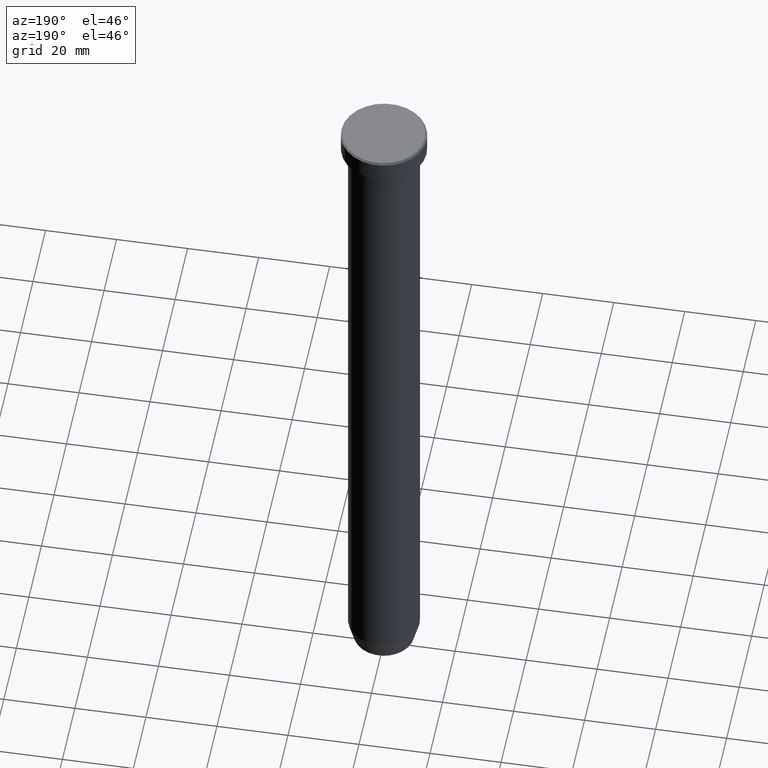
[diagram: clean part render]
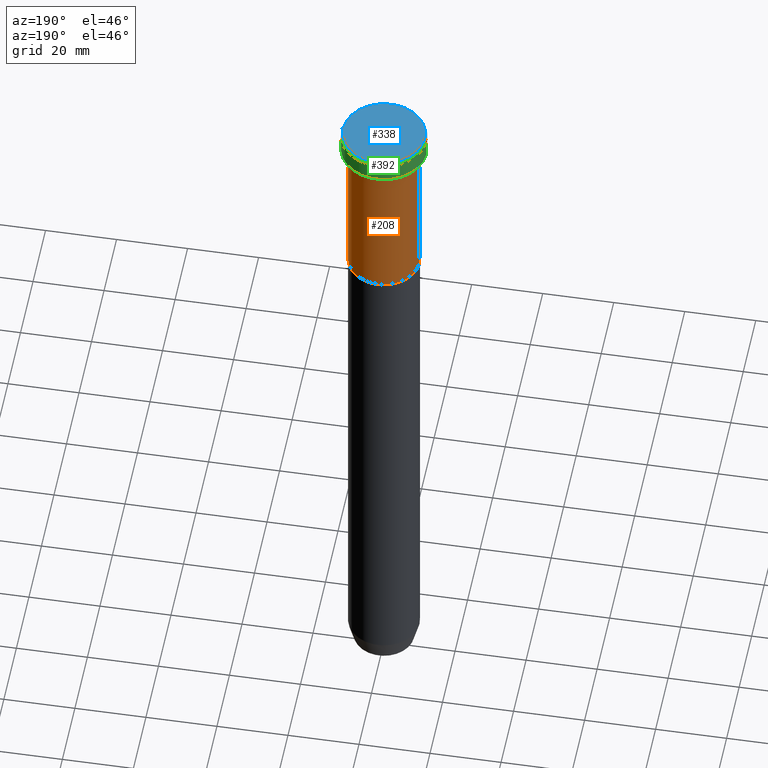
[diagram: same view with three faces highlighted in distinct colors, each labeled with its STEP entity id]
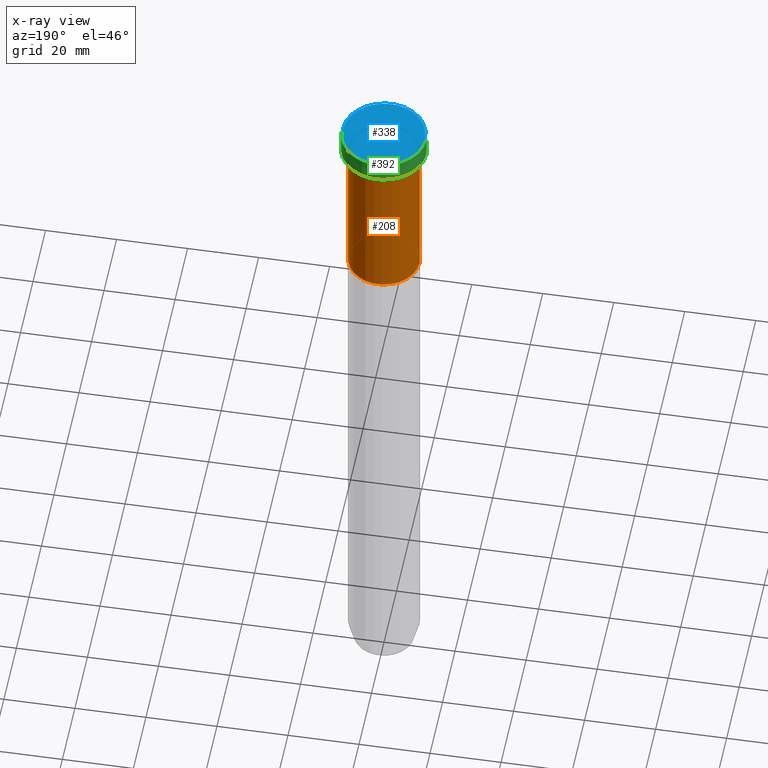
[diagram: x-ray of the same camera — body ghosted, the three highlighted faces saturated]
A machine part, auxiliary view with three faces highlighted in distinct colors.
The next image is the same camera in x-ray (body ghosted, the three faces saturated) — at least one of them is partly hidden behind the body in this view.
Their STEP definitions:

[orange] entity #208 — the highlighted cylindrical surface (edge-blend (fillet) strip) has radius 10 mm, axis along (-0, -0, 1).
#6 = CARTESIAN_POINT ( 'NONE',  ( -10.00000000000000000, 1.224646799147353256E-15, -50.00000000000000000 ) ) ;
#16 = LINE ( 'NONE', #194, #376 ) ;
#28 = DIRECTION ( 'NONE',  ( -0.000000000000000000, -0.000000000000000000, 1.000000000000000000 ) ) ;
#46 = CARTESIAN_POINT ( 'NONE',  ( -10.00000000000000000, 1.224646799147353256E-15, -6.999999999999999112 ) ) ;
#57 = AXIS2_PLACEMENT_3D ( 'NONE', #62, #404, #282 ) ;
#62 = CARTESIAN_POINT ( 'NONE',  ( 0.000000000000000000, 0.000000000000000000, -50.00000000000000000 ) ) ;
#84 = CARTESIAN_POINT ( 'NONE',  ( 10.00000000000000000, 0.000000000000000000, -50.00000000000000000 ) ) ;
#98 = CARTESIAN_POINT ( 'NONE',  ( 0.000000000000000000, 0.000000000000000000, 0.000000000000000000 ) ) ;
#133 = VERTEX_POINT ( 'NONE', #84 ) ;
#136 = EDGE_CURVE ( 'NONE', #361, #314, #256, .T. ) ;
#159 = ORIENTED_EDGE ( 'NONE', *, *, #380, .F. ) ;
#161 = AXIS2_PLACEMENT_3D ( 'NONE', #203, #28, #389 ) ;
#183 = CARTESIAN_POINT ( 'NONE',  ( 10.00000000000000000, 0.000000000000000000, -6.999999999999999112 ) ) ;
#194 = CARTESIAN_POINT ( 'NONE',  ( 10.00000000000000000, 0.000000000000000000, 0.000000000000000000 ) ) ;
#195 = DIRECTION ( 'NONE',  ( -0.000000000000000000, -0.000000000000000000, 1.000000000000000000 ) ) ;
#203 = CARTESIAN_POINT ( 'NONE',  ( 0.000000000000000000, 0.000000000000000000, -6.999999999999999112 ) ) ;
#208 = ADVANCED_FACE ( 'NONE', ( #420 ), #233, .T. ) ;
#213 = CIRCLE ( 'NONE', #57, 10.00000000000000000 ) ;
#233 = CYLINDRICAL_SURFACE ( 'NONE', #478, 10.00000000000000000 ) ;
#240 = ORIENTED_EDGE ( 'NONE', *, *, #589, .F. ) ;
#250 = VECTOR ( 'NONE', #195, 1000.000000000000000 ) ;
#256 = LINE ( 'NONE', #457, #250 ) ;
#281 = ORIENTED_EDGE ( 'NONE', *, *, #136, .T. ) ;
#282 = DIRECTION ( 'NONE',  ( 1.000000000000000000, 0.000000000000000000, 0.000000000000000000 ) ) ;
#286 = ORIENTED_EDGE ( 'NONE', *, *, #585, .T. ) ;
#314 = VERTEX_POINT ( 'NONE', #46 ) ;
#361 = VERTEX_POINT ( 'NONE', #6 ) ;
#376 = VECTOR ( 'NONE', #564, 1000.000000000000000 ) ;
#380 = EDGE_CURVE ( 'NONE', #480, #314, #462, .T. ) ;
#389 = DIRECTION ( 'NONE',  ( 1.000000000000000000, 0.000000000000000000, 0.000000000000000000 ) ) ;
#404 = DIRECTION ( 'NONE',  ( -0.000000000000000000, -0.000000000000000000, 1.000000000000000000 ) ) ;
#420 = FACE_OUTER_BOUND ( 'NONE', #433, .T. ) ;
#429 = DIRECTION ( 'NONE',  ( 1.000000000000000000, 0.000000000000000000, 0.000000000000000000 ) ) ;
#433 = EDGE_LOOP ( 'NONE', ( #286, #281, #159, #240 ) ) ;
#457 = CARTESIAN_POINT ( 'NONE',  ( -10.00000000000000000, 1.224646799147353256E-15, 0.000000000000000000 ) ) ;
#462 = CIRCLE ( 'NONE', #161, 10.00000000000000000 ) ;
#478 = AXIS2_PLACEMENT_3D ( 'NONE', #98, #517, #429 ) ;
#480 = VERTEX_POINT ( 'NONE', #183 ) ;
#517 = DIRECTION ( 'NONE',  ( -0.000000000000000000, -0.000000000000000000, 1.000000000000000000 ) ) ;
#564 = DIRECTION ( 'NONE',  ( -0.000000000000000000, -0.000000000000000000, 1.000000000000000000 ) ) ;
#585 = EDGE_CURVE ( 'NONE', #133, #361, #213, .T. ) ;
#589 = EDGE_CURVE ( 'NONE', #133, #480, #16, .T. ) ;

[blue] entity #338 — the highlighted planar face has unit normal (0, -0, 1).
#12 = PLANE ( 'NONE',  #547 ) ;
#42 = CIRCLE ( 'NONE', #565, 11.50000000000000888 ) ;
#48 = DIRECTION ( 'NONE',  ( 0.000000000000000000, -0.000000000000000000, 1.000000000000000000 ) ) ;
#66 = ORIENTED_EDGE ( 'NONE', *, *, #515, .T. ) ;
#91 = DIRECTION ( 'NONE',  ( 1.000000000000000000, 0.000000000000000000, 0.000000000000000000 ) ) ;
#110 = CARTESIAN_POINT ( 'NONE',  ( 0.000000000000000000, 0.000000000000000000, 0.000000000000000000 ) ) ;
#112 = EDGE_LOOP ( 'NONE', ( #66, #446 ) ) ;
#135 = DIRECTION ( 'NONE',  ( -0.000000000000000000, -0.000000000000000000, 1.000000000000000000 ) ) ;
#142 = CARTESIAN_POINT ( 'NONE',  ( 11.50000000000000888, 1.438959988998140752E-15, 0.000000000000000000 ) ) ;
#196 = CIRCLE ( 'NONE', #366, 11.50000000000000888 ) ;
#237 = VERTEX_POINT ( 'NONE', #142 ) ;
#260 = VERTEX_POINT ( 'NONE', #274 ) ;
#264 = FACE_OUTER_BOUND ( 'NONE', #112, .T. ) ;
#274 = CARTESIAN_POINT ( 'NONE',  ( -11.50000000000000888, 0.000000000000000000, 0.000000000000000000 ) ) ;
#275 = CARTESIAN_POINT ( 'NONE',  ( 0.000000000000000000, 0.000000000000000000, 0.000000000000000000 ) ) ;
#302 = DIRECTION ( 'NONE',  ( -0.000000000000000000, -0.000000000000000000, 1.000000000000000000 ) ) ;
#336 = EDGE_CURVE ( 'NONE', #237, #260, #196, .T. ) ;
#338 = ADVANCED_FACE ( 'NONE', ( #264 ), #12, .T. ) ;
#366 = AXIS2_PLACEMENT_3D ( 'NONE', #549, #135, #91 ) ;
#446 = ORIENTED_EDGE ( 'NONE', *, *, #336, .T. ) ;
#476 = DIRECTION ( 'NONE',  ( 1.000000000000000000, 0.000000000000000000, 0.000000000000000000 ) ) ;
#515 = EDGE_CURVE ( 'NONE', #260, #237, #42, .T. ) ;
#534 = DIRECTION ( 'NONE',  ( 1.000000000000000000, 0.000000000000000000, 0.000000000000000000 ) ) ;
#547 = AXIS2_PLACEMENT_3D ( 'NONE', #275, #48, #476 ) ;
#549 = CARTESIAN_POINT ( 'NONE',  ( 0.000000000000000000, 0.000000000000000000, 0.000000000000000000 ) ) ;
#565 = AXIS2_PLACEMENT_3D ( 'NONE', #110, #302, #534 ) ;

[green] entity #392 — the highlighted cylindrical surface (partial cylindrical patch) has radius 12 mm, axis along (-0, -0, 1).
#9 = CIRCLE ( 'NONE', #316, 12.00000000000000000 ) ;
#18 = ORIENTED_EDGE ( 'NONE', *, *, #526, .T. ) ;
#25 = ORIENTED_EDGE ( 'NONE', *, *, #181, .T. ) ;
#64 = VERTEX_POINT ( 'NONE', #125 ) ;
#65 = DIRECTION ( 'NONE',  ( -0.000000000000000000, -0.000000000000000000, 1.000000000000000000 ) ) ;
#85 = DIRECTION ( 'NONE',  ( -0.000000000000000000, -0.000000000000000000, 1.000000000000000000 ) ) ;
#86 = DIRECTION ( 'NONE',  ( -0.000000000000000000, -0.000000000000000000, 1.000000000000000000 ) ) ;
#90 = CIRCLE ( 'NONE', #116, 12.00000000000000000 ) ;
#103 = VERTEX_POINT ( 'NONE', #225 ) ;
#116 = AXIS2_PLACEMENT_3D ( 'NONE', #258, #414, #137 ) ;
#125 = CARTESIAN_POINT ( 'NONE',  ( 12.00000000000000000, 0.000000000000000000, -0.4999999999999987232 ) ) ;
#137 = DIRECTION ( 'NONE',  ( 1.000000000000000000, 0.000000000000000000, 0.000000000000000000 ) ) ;
#168 = CARTESIAN_POINT ( 'NONE',  ( 0.000000000000000000, 0.000000000000000000, 0.000000000000000000 ) ) ;
#181 = EDGE_CURVE ( 'NONE', #595, #64, #90, .T. ) ;
#193 = VERTEX_POINT ( 'NONE', #363 ) ;
#201 = DIRECTION ( 'NONE',  ( 1.000000000000000000, 0.000000000000000000, 0.000000000000000000 ) ) ;
#204 = EDGE_CURVE ( 'NONE', #103, #64, #235, .T. ) ;
#225 = CARTESIAN_POINT ( 'NONE',  ( 12.00000000000000000, 0.000000000000000000, -5.999999999999999112 ) ) ;
#235 = LINE ( 'NONE', #277, #489 ) ;
#238 = AXIS2_PLACEMENT_3D ( 'NONE', #168, #85, #581 ) ;
#255 = CARTESIAN_POINT ( 'NONE',  ( 0.000000000000000000, 0.000000000000000000, -5.999999999999999112 ) ) ;
#258 = CARTESIAN_POINT ( 'NONE',  ( 0.000000000000000000, 0.000000000000000000, -0.4999999999999987232 ) ) ;
#277 = CARTESIAN_POINT ( 'NONE',  ( 12.00000000000000000, 0.000000000000000000, 0.000000000000000000 ) ) ;
#284 = ORIENTED_EDGE ( 'NONE', *, *, #204, .F. ) ;
#305 = CYLINDRICAL_SURFACE ( 'NONE', #238, 12.00000000000000000 ) ;
#316 = AXIS2_PLACEMENT_3D ( 'NONE', #255, #65, #201 ) ;
#319 = EDGE_CURVE ( 'NONE', #193, #595, #466, .T. ) ;
#326 = VECTOR ( 'NONE', #86, 1000.000000000000000 ) ;
#330 = CARTESIAN_POINT ( 'NONE',  ( -12.00000000000000000, 1.469576158976823947E-15, -0.4999999999999987232 ) ) ;
#348 = EDGE_LOOP ( 'NONE', ( #18, #483, #25, #284 ) ) ;
#351 = FACE_OUTER_BOUND ( 'NONE', #348, .T. ) ;
#363 = CARTESIAN_POINT ( 'NONE',  ( -12.00000000000000000, 1.469576158976823947E-15, -5.999999999999999112 ) ) ;
#392 = ADVANCED_FACE ( 'NONE', ( #351 ), #305, .T. ) ;
#414 = DIRECTION ( 'NONE',  ( 0.000000000000000000, 0.000000000000000000, -1.000000000000000000 ) ) ;
#459 = CARTESIAN_POINT ( 'NONE',  ( -12.00000000000000000, 1.469576158976823947E-15, 0.000000000000000000 ) ) ;
#466 = LINE ( 'NONE', #459, #326 ) ;
#483 = ORIENTED_EDGE ( 'NONE', *, *, #319, .T. ) ;
#489 = VECTOR ( 'NONE', #561, 1000.000000000000000 ) ;
#526 = EDGE_CURVE ( 'NONE', #103, #193, #9, .T. ) ;
#561 = DIRECTION ( 'NONE',  ( -0.000000000000000000, -0.000000000000000000, 1.000000000000000000 ) ) ;
#581 = DIRECTION ( 'NONE',  ( 1.000000000000000000, 0.000000000000000000, 0.000000000000000000 ) ) ;
#595 = VERTEX_POINT ( 'NONE', #330 ) ;